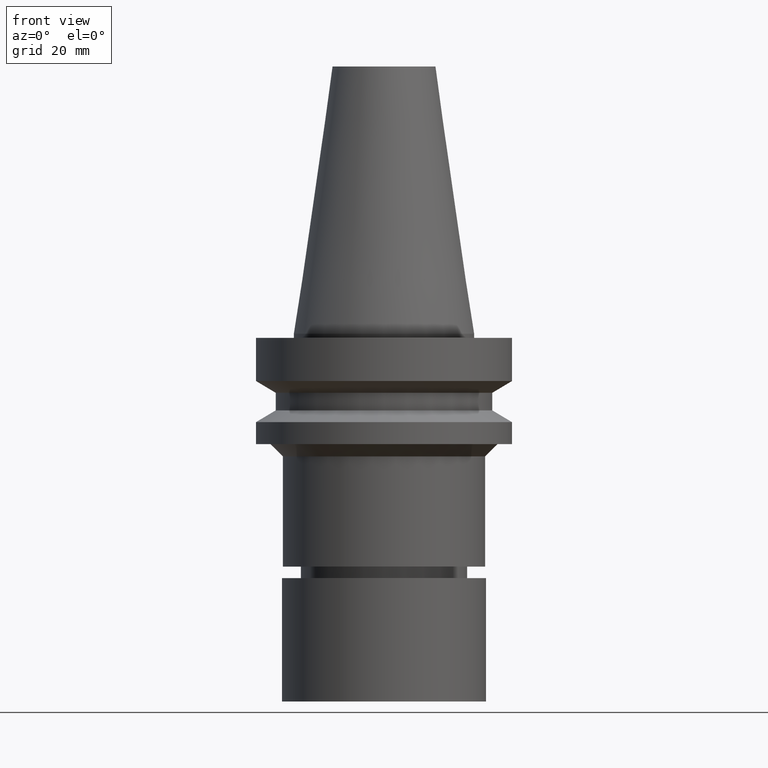
[diagram: clean part render]
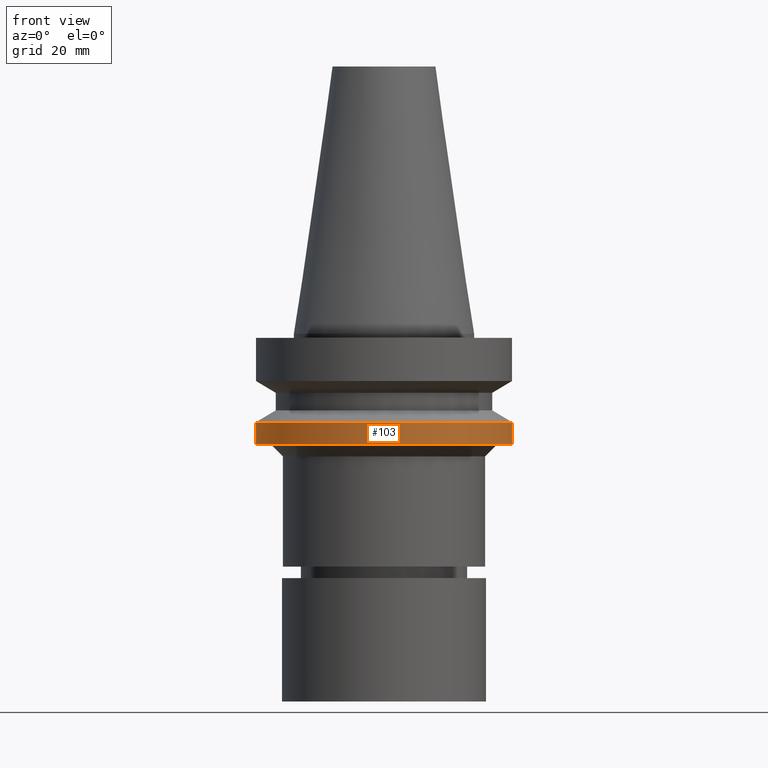
[diagram: same view with one face highlighted and labeled with its STEP entity id]
A machine part, front view. The second image highlights one B-rep face of the part: STEP entity #103.
In plain terms, the highlighted cylindrical surface (bore or boss wall) has radius 31.5 mm, axis along (0, -0, -1).
Its self-contained STEP definition (entity closure, byte-faithful):
#88=EDGE_CURVE('Unnamed[1]',#222,#222,#223,.T.);
#103=ADVANCED_FACE('Unnamed[1]',(#244,#245),#246,.T.);
#135=EDGE_CURVE('Unnamed[1]',#292,#292,#293,.T.);
#222=VERTEX_POINT('',#403);
#223=CIRCLE('',#404,31.5000000000007);
#244=FACE_BOUND('',#431,.T.);
#245=FACE_BOUND('',#432,.T.);
#246=CYLINDRICAL_SURFACE('',#433,31.5000000000005);
#292=VERTEX_POINT('',#491);
#293=CIRCLE('',#492,31.5000000000003);
#403=CARTESIAN_POINT('',(1.32473071268174E-015,31.5000000000007,-21.6344943473346));
#404=AXIS2_PLACEMENT_3D('',#604,#605,#606);
#431=EDGE_LOOP('',(#628));
#432=EDGE_LOOP('',(#629));
#433=AXIS2_PLACEMENT_3D('',#630,#631,#632);
#491=CARTESIAN_POINT('',(1.65328282719222E-015,31.5000000000004,-27.0001575694036));
#492=AXIS2_PLACEMENT_3D('',#680,#681,#682);
#604=CARTESIAN_POINT('',(1.32473071268174E-015,5.55130291355601E-014,-21.6344943473346));
#605=DIRECTION('',(6.12323399573677E-017,-2.45986715532943E-016,-1.0));
#606=DIRECTION('',(1.02351894597413E-032,1.0,-2.45986715532943E-016));
#628=ORIENTED_EDGE('',*,*,#135,.F.);
#629=ORIENTED_EDGE('',*,*,#88,.T.);
#630=CARTESIAN_POINT('',(1.48900676993698E-015,5.48530881992338E-014,-24.3173259583691));
#631=DIRECTION('',(6.12323399573677E-017,-2.45986715532944E-016,-1.0));
#632=DIRECTION('',(1.02351894597413E-032,1.0,-2.45986715532944E-016));
#680=CARTESIAN_POINT('',(1.65328282719222E-015,5.41931472629076E-014,-27.0001575694036));
#681=DIRECTION('',(6.12323399573677E-017,-2.45986715532946E-016,-1.0));
#682=DIRECTION('',(1.02351894597414E-032,1.0,-2.45986715532946E-016));